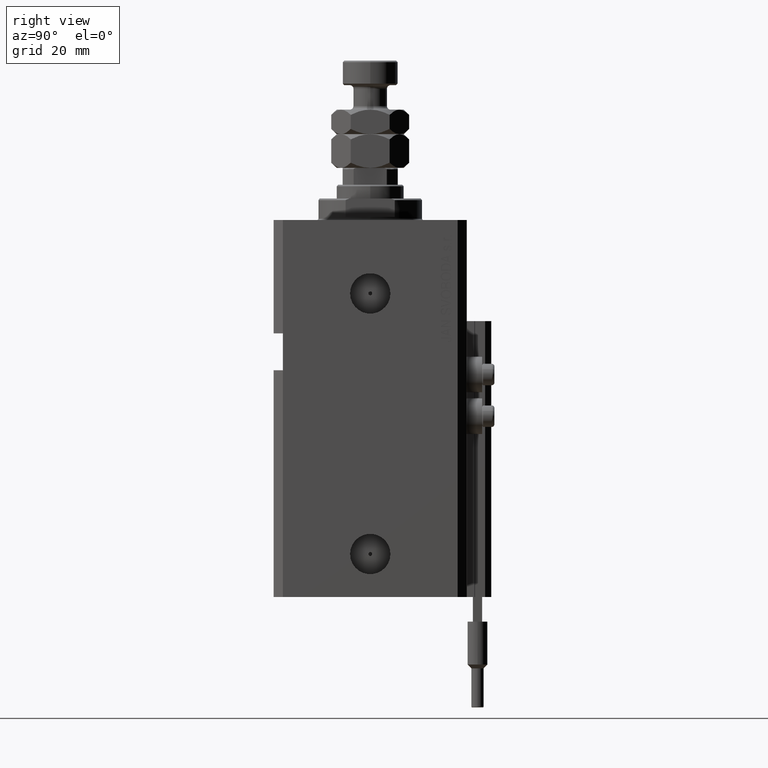
[diagram: clean part render]
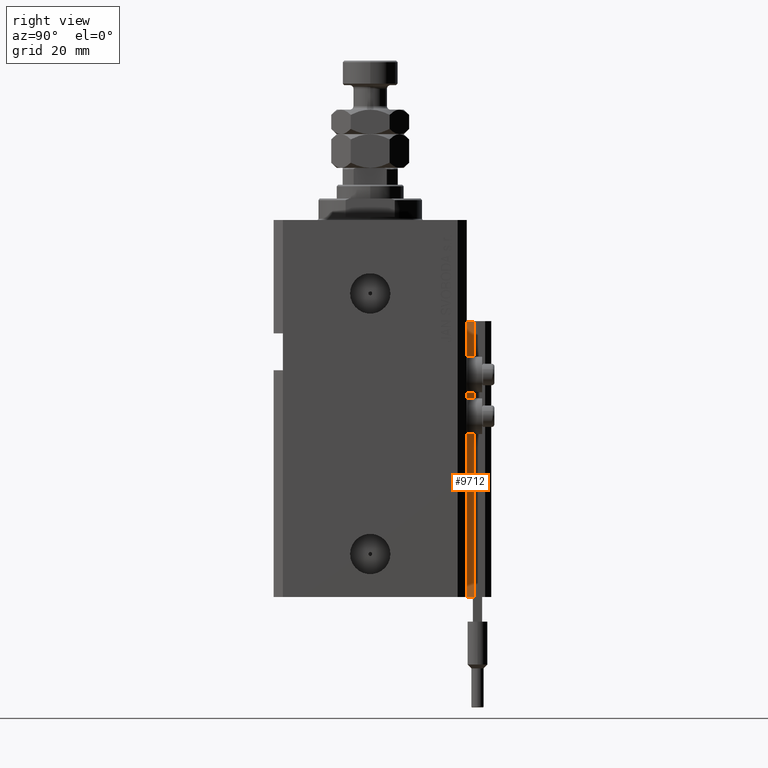
[diagram: same view with one face highlighted and labeled with its STEP entity id]
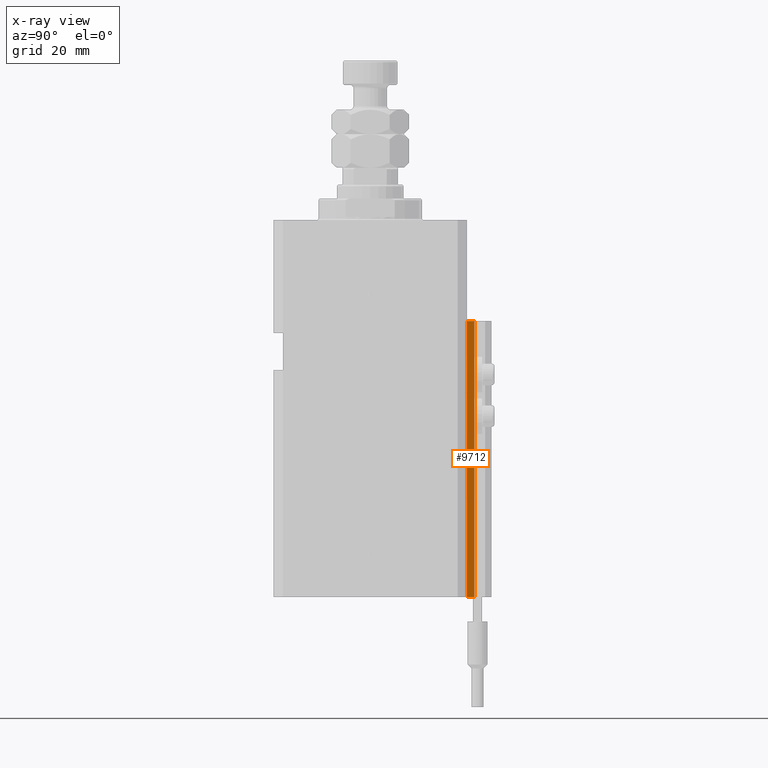
[diagram: x-ray of the same camera — body ghosted, the highlighted face saturated]
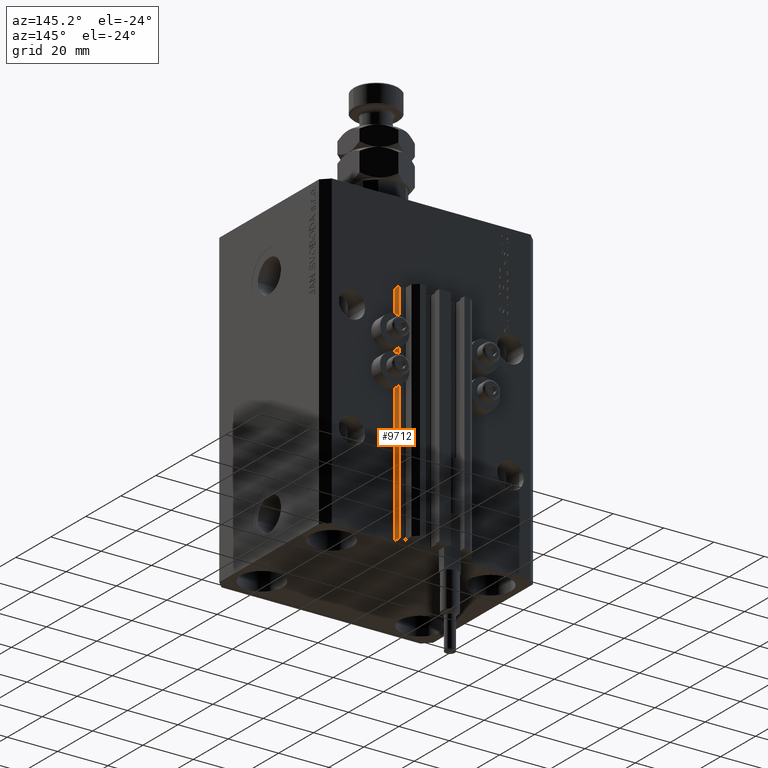
[diagram: same view with one face highlighted and labeled with its STEP entity id]
A machine part, right view. The second image highlights one B-rep face of the part: STEP entity #9712.
The next image is the same camera in x-ray: the body ghosted, the highlighted face saturated — about 0% of this face is hidden behind the body in this view.
A second angle (auxiliary view) of the same face is appended — the face is thin or edge-on in the first view.
In plain terms, the highlighted planar face has unit normal (1, 0, 0).
Its self-contained STEP definition (entity closure, byte-faithful):
#1923 = AXIS2_PLACEMENT_3D ( 'NONE', #40663, #24805, #48339 ) ;
#6994 = CARTESIAN_POINT ( 'NONE',  ( 14.49999999999999645, 31.50000000000000000, -123.0000000000000000 ) ) ;
#7569 = LINE ( 'NONE', #42870, #39924 ) ;
#7781 = ORIENTED_EDGE ( 'NONE', *, *, #28621, .T. ) ;
#8351 = VERTEX_POINT ( 'NONE', #44809 ) ;
#9367 = VECTOR ( 'NONE', #22341, 1000.000000000000000 ) ;
#9712 = ADVANCED_FACE ( 'NONE', ( #17385 ), #44011, .T. ) ;
#10580 = CARTESIAN_POINT ( 'NONE',  ( 14.49999999999999645, 31.50000000000000000, -33.00000000000000000 ) ) ;
#11581 = CARTESIAN_POINT ( 'NONE',  ( 14.49999999999999645, 31.50000000000000000, -123.0000000000000000 ) ) ;
#12121 = VECTOR ( 'NONE', #33103, 1000.000000000000000 ) ;
#12224 = CARTESIAN_POINT ( 'NONE',  ( 14.49999999999999645, 34.00000000000001421, -123.0000000000000000 ) ) ;
#12345 = EDGE_CURVE ( 'NONE', #34433, #8351, #42295, .T. ) ;
#13691 = ORIENTED_EDGE ( 'NONE', *, *, #12345, .F. ) ;
#14981 = DIRECTION ( 'NONE',  ( 0.000000000000000000, 1.000000000000000000, 0.000000000000000000 ) ) ;
#15363 = LINE ( 'NONE', #10580, #12121 ) ;
#17385 = FACE_OUTER_BOUND ( 'NONE', #41223, .T. ) ;
#20418 = CARTESIAN_POINT ( 'NONE',  ( 14.49999999999999645, 34.00000000000001421, -33.00000000000000000 ) ) ;
#22341 = DIRECTION ( 'NONE',  ( 0.000000000000000000, 0.000000000000000000, 1.000000000000000000 ) ) ;
#24805 = DIRECTION ( 'NONE',  ( 1.000000000000000000, 0.000000000000000000, 0.000000000000000000 ) ) ;
#25476 = ORIENTED_EDGE ( 'NONE', *, *, #36979, .T. ) ;
#28621 = EDGE_CURVE ( 'NONE', #38574, #44597, #38152, .T. ) ;
#29995 = ORIENTED_EDGE ( 'NONE', *, *, #33562, .F. ) ;
#31570 = VECTOR ( 'NONE', #37646, 1000.000000000000000 ) ;
#33103 = DIRECTION ( 'NONE',  ( 0.000000000000000000, 1.000000000000000000, 0.000000000000000000 ) ) ;
#33562 = EDGE_CURVE ( 'NONE', #8351, #44597, #15363, .T. ) ;
#34433 = VERTEX_POINT ( 'NONE', #11581 ) ;
#36979 = EDGE_CURVE ( 'NONE', #34433, #38574, #7569, .T. ) ;
#37646 = DIRECTION ( 'NONE',  ( 0.000000000000000000, 0.000000000000000000, 1.000000000000000000 ) ) ;
#38152 = LINE ( 'NONE', #41739, #31570 ) ;
#38574 = VERTEX_POINT ( 'NONE', #12224 ) ;
#39924 = VECTOR ( 'NONE', #14981, 1000.000000000000000 ) ;
#40663 = CARTESIAN_POINT ( 'NONE',  ( 14.49999999999999645, 31.50000000000000000, -123.0000000000000000 ) ) ;
#41223 = EDGE_LOOP ( 'NONE', ( #29995, #13691, #25476, #7781 ) ) ;
#41739 = CARTESIAN_POINT ( 'NONE',  ( 14.49999999999999645, 34.00000000000001421, -123.0000000000000000 ) ) ;
#42295 = LINE ( 'NONE', #6994, #9367 ) ;
#42870 = CARTESIAN_POINT ( 'NONE',  ( 14.49999999999999645, 31.50000000000000000, -123.0000000000000000 ) ) ;
#44011 = PLANE ( 'NONE',  #1923 ) ;
#44597 = VERTEX_POINT ( 'NONE', #20418 ) ;
#44809 = CARTESIAN_POINT ( 'NONE',  ( 14.49999999999999645, 31.50000000000000000, -33.00000000000000000 ) ) ;
#48339 = DIRECTION ( 'NONE',  ( 0.000000000000000000, 0.000000000000000000, -1.000000000000000000 ) ) ;